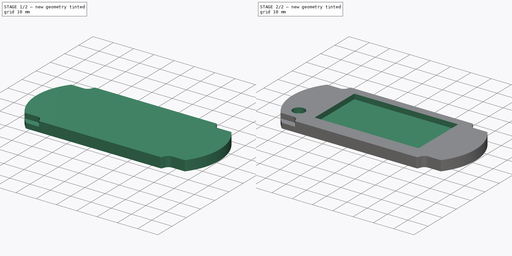
[diagram: build sequence overview — one tinted view per stage of 2, left to right]
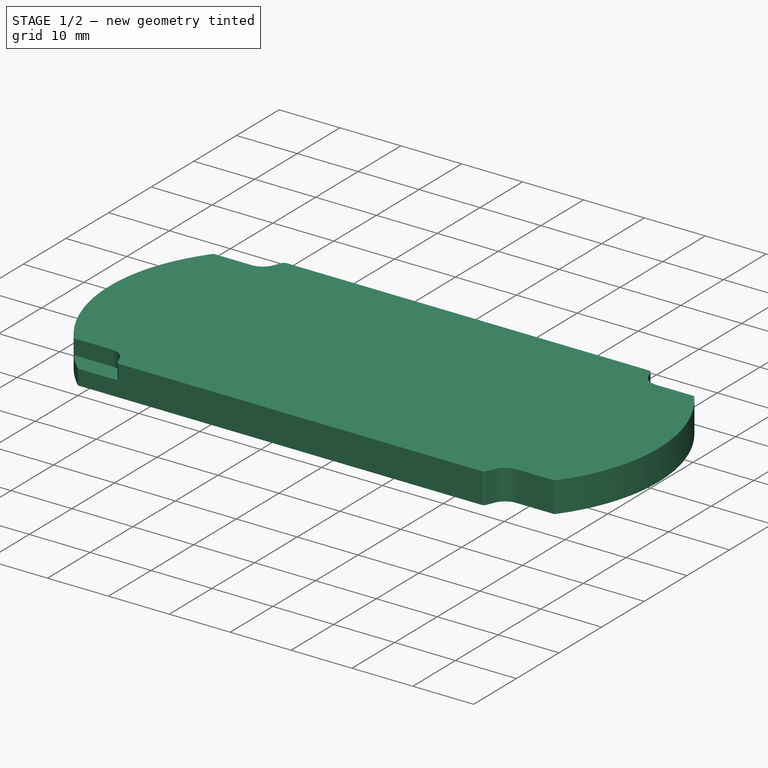
[diagram: stage 1 of 2 — iso view after this stage's code; geometry added in this stage tinted green]
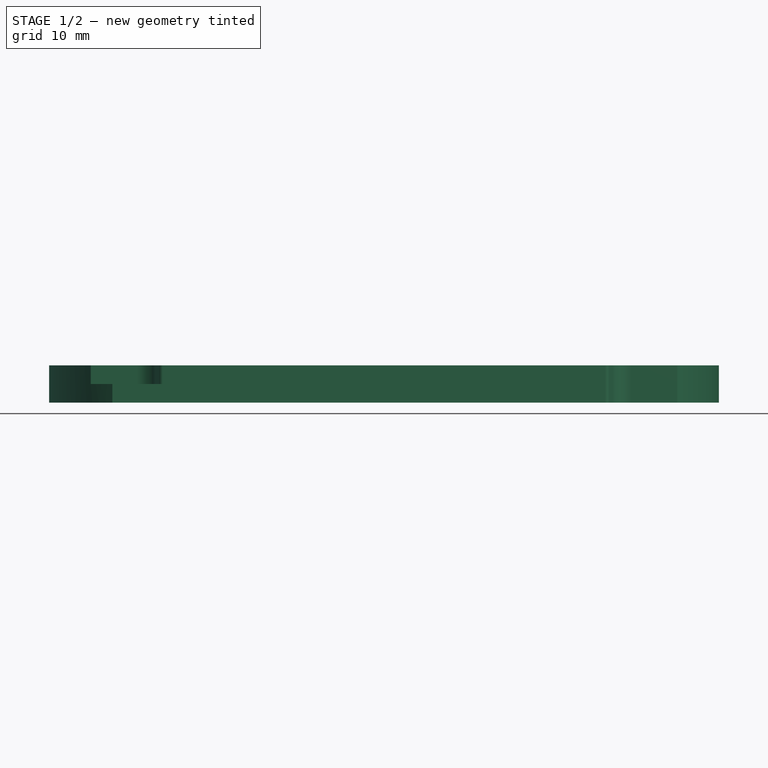
[diagram: stage 1 of 2 — front view after this stage's code; geometry added in this stage tinted green]
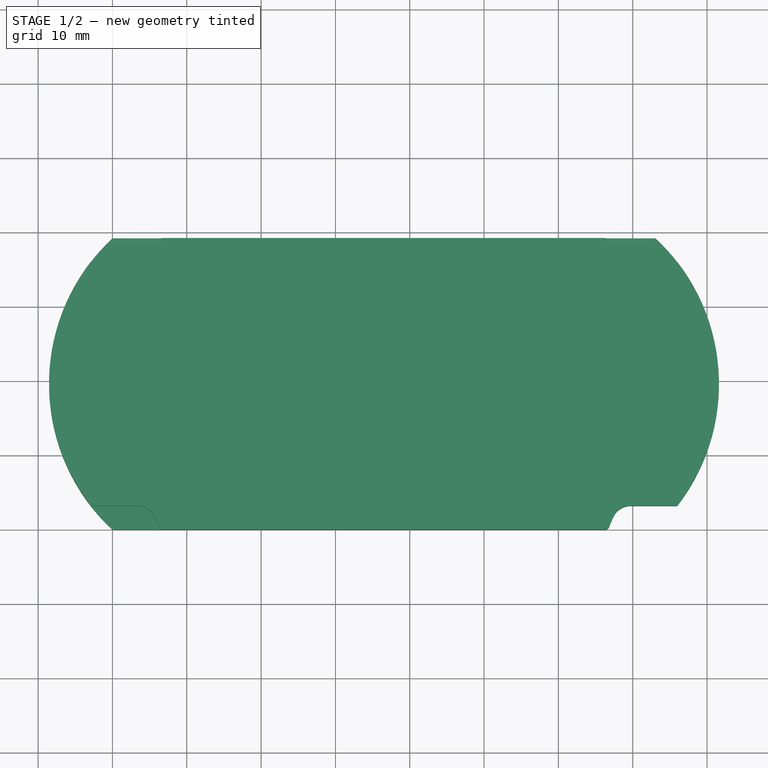
[diagram: stage 1 of 2 — top view after this stage's code; geometry added in this stage tinted green]
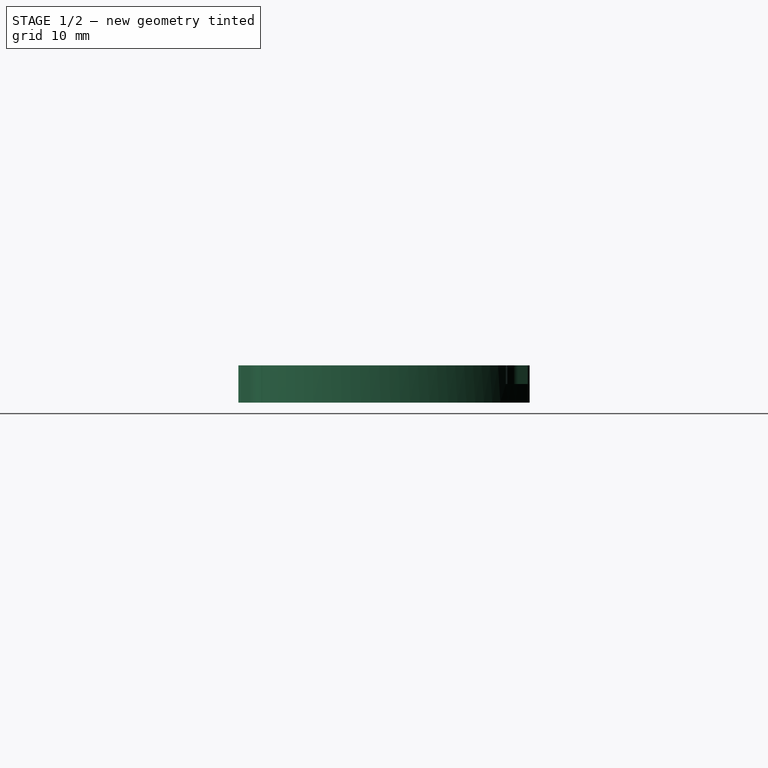
[diagram: stage 1 of 2 — right view after this stage's code; geometry added in this stage tinted green]
FCSTD DOCUMENT  (FreeCAD 0.21R33771 (Git))
Label: PSP Icon
License: All rights reserved
LicenseURL: http://en.wikipedia.org/wiki/All_rights_reserved
objects: Sketcher::SketchObject×3, PartDesign::Pocket×2, PartDesign::Pad×1, PartDesign::Body×1
note: 10 computed .brp shape members not serialized (recipe doc carries the construction recipe); baked Part::Feature solids carry a one-line shape summary decoded from their .brp

FEATURE [Sketcher::SketchObject] Sketch
  FullyConstrained = true
  MapMode = 5
  Support = -> [XY_Plane]
  sketch-geometry (15):
    g0: ArcOfCircle CenterX=18.2438 CenterY=19.6 CenterZ=0 NormalX=0 NormalY=0 NormalZ=1 AngleXU=0 Radius=26.7768 StartAngle=2.32037 EndAngle=3.96281
    g1: LineSegment StartX=0 StartY=39.2 StartZ=0 EndX=0 EndY=0 EndZ=0
    g2: LineSegment StartX=-8.533 StartY=19.6 StartZ=0 EndX=0 EndY=19.6 EndZ=0
    g3: LineSegment StartX=0 StartY=39.2 StartZ=0 EndX=73.067 EndY=39.2 EndZ=0
    g4: LineSegment StartX=73.067 StartY=39.2 StartZ=0 EndX=73.067 EndY=0 EndZ=0
    g5: LineSegment StartX=73.067 StartY=19.6 StartZ=0 EndX=81.6 EndY=19.6 EndZ=0
    g6: ArcOfCircle CenterX=54.8232 CenterY=19.6 CenterZ=0 NormalX=0 NormalY=0 NormalZ=1 AngleXU=0 Radius=26.7768 StartAngle=5.46196 EndAngle=7.10441
    g7: LineSegment StartX=75.9901 StartY=3.2 StartZ=0 EndX=75.9901 EndY=0 EndZ=0
    g8: LineSegment StartX=0 StartY=0 StartZ=0 EndX=73.067 EndY=0 EndZ=0
    g9: LineSegment StartX=75.9901 StartY=3.2 StartZ=0 EndX=69.7731 EndY=3.2 EndZ=0
    g10: LineSegment StartX=67.312 StartY=1.56073 StartZ=0 EndX=66.8022 EndY=0.339902 EndZ=0
    g11: LineSegment StartX=66.2919 StartY=0 StartZ=0 EndX=0 EndY=0 EndZ=0
    g12: ArcOfCircle CenterX=66.2919 CenterY=0.553 CenterZ=0 NormalX=0 NormalY=0 NormalZ=1 AngleXU=0 Radius=0.553 StartAngle=4.71239 EndAngle=5.8876
    g13: ArcOfCircle CenterX=69.7731 CenterY=0.533 CenterZ=0 NormalX=0 NormalY=0 NormalZ=1 AngleXU=0 Radius=2.667 StartAngle=1.5708 EndAngle=2.74601
    g14: ArcOfCircle CenterX=54.8232 CenterY=19.6 CenterZ=0 NormalX=0 NormalY=0 NormalZ=1 AngleXU=0 Radius=26.7768 StartAngle=5.624 EndAngle=7.10441
  constraints (44):
    c: Coincident(g0,g-1)
    c: PointOnObject(g0,g-2)
    c: Coincident(g1,g0)
    c: Coincident(g1,g0)
    c: Distance(g1) = 39.2
    c: PointOnObject(g2,g0)
    c: PointOnObject(g2,g1)
    c: Horizontal(g2)
    c: Perpendicular(g0,g2)
    c: Distance(g2) = 8.533
    c: PointOnObject(g4,g-1)
    c: Coincident(g3,g0)
    c: Horizontal(g3)
    c: Coincident(g4,g3)
    c: Vertical(g4)
    c: PointOnObject(g5,g4)
    c: Horizontal(g5)
    c: Equal(g5,g2)
    c: Coincident(g6,g3)
    c: PointOnObject(g5,g6)
    c: Perpendicular(g6,g5)
    c: PointOnObject(g7,g6)
    c: PointOnObject(g7,g-1)
    c: Vertical(g7)
    c: Coincident(g8,g0)
    c: Coincident(g8,g4)
    c: Coincident(g6,g4)
    c: Distance(g7) = 3.2
    c: Coincident(g9,g7)
    c: Horizontal(g9)
    c: Coincident(g11,g0)
    c: Tangent(g11,g12) = 1.5708
    c: Tangent(g10,g12) = 1.5708
    c: Tangent(g10,g13) = -1.5708
    c: Tangent(g9,g13) = -1.5708
    c: Distance(g9) = 6.217
    c: Radius(g13) = 2.667
    c: Distance(g10) = 1.323
    c: PointOnObject(g11,g8)
    c: Radius(g12) = 0.553
    c: Distance(g3) = 73.067
    c: Coincident(g14,g3)
    c: Coincident(g14,g9)
    c: Equal(g6,g14)
FEATURE [PartDesign::Pad] Pad
  Direction = (0,0,1)
  Length = 5
  Length2 = 10
  Profile = -> Sketch
  ReferenceAxis = -> Sketch [N_Axis]
  Type = 0
FEATURE [Sketcher::SketchObject] Sketch001
  ExternalGeometry = -> [Pad]
  FullyConstrained = true
  MapMode = 5
  Placement = pos=(0,0,5) rot=(0,0,1;0rad)
  Support = -> [Pad]
  sketch-geometry (24):
    g0: LineSegment StartX=-3.6e-15 StartY=39.2 StartZ=0 EndX=73.067 EndY=39.2 EndZ=0
    g1: LineSegment StartX=73.067 StartY=39.2 StartZ=0 EndX=75.9901 EndY=39.2 EndZ=0
    g2: LineSegment StartX=-3.6e-15 StartY=39.2 StartZ=0 EndX=-2.92307 EndY=39.2 EndZ=0
    g3: LineSegment StartX=-2.92307 StartY=39.2 StartZ=0 EndX=-2.92307 EndY=36 EndZ=0
    g4: LineSegment StartX=75.9901 StartY=39.2 StartZ=0 EndX=75.9901 EndY=36 EndZ=0
    g5: LineSegment StartX=-2.92307 StartY=36 StartZ=0 EndX=3.29393 EndY=36 EndZ=0
    g6: LineSegment StartX=5.75496 StartY=37.6393 StartZ=0 EndX=6.26477 EndY=38.8601 EndZ=0
    g7: LineSegment StartX=-2.92307 StartY=39.2 StartZ=0 EndX=-2.92307 EndY=36 EndZ=0
    g8: LineSegment StartX=75.9901 StartY=36 StartZ=0 EndX=69.7731 EndY=36 EndZ=0
    g9: LineSegment StartX=67.312 StartY=37.6393 StartZ=0 EndX=66.8022 EndY=38.8601 EndZ=0
    g10: LineSegment StartX=75.9901 StartY=39.2 StartZ=0 EndX=75.9901 EndY=36 EndZ=0
    g11: ArcOfCircle CenterX=3.29393 CenterY=38.667 CenterZ=0 NormalX=0 NormalY=0 NormalZ=1 AngleXU=0 Radius=2.667 StartAngle=4.71239 EndAngle=5.8876
    g12: ArcOfCircle CenterX=6.77507 CenterY=38.647 CenterZ=0 NormalX=0 NormalY=0 NormalZ=1 AngleXU=0 Radius=0.553 StartAngle=1.5708 EndAngle=2.74601
    g13: LineSegment StartX=-2.92307 StartY=39.2 StartZ=0 EndX=6.77507 EndY=39.2 EndZ=0
    g14: ArcOfCircle CenterX=66.2919 CenterY=38.647 CenterZ=0 NormalX=0 NormalY=0 NormalZ=1 AngleXU=0 Radius=0.553 StartAngle=0.395587 EndAngle=1.5708
    g15: LineSegment StartX=66.2919 StartY=39.2 StartZ=0 EndX=75.9901 EndY=39.2 EndZ=0
    g16: ArcOfCircle CenterX=69.7731 CenterY=38.667 CenterZ=0 NormalX=0 NormalY=0 NormalZ=1 AngleXU=0 Radius=2.667 StartAngle=3.53718 EndAngle=4.71239
    g17: LineSegment StartX=-2.92307 StartY=3.2 StartZ=0 EndX=-2.92307 EndY=0 EndZ=0
    g18: LineSegment StartX=-2.92307 StartY=0 StartZ=0 EndX=6.77507 EndY=0 EndZ=0
    g19: LineSegment StartX=-2.92307 StartY=3.2 StartZ=0 EndX=3.29393 EndY=3.2 EndZ=0
    g20: LineSegment StartX=5.75496 StartY=1.56073 StartZ=0 EndX=6.26477 EndY=0.339902 EndZ=0
    g21: LineSegment StartX=-2.92307 StartY=0 StartZ=0 EndX=6.77507 EndY=0 EndZ=0
    g22: ArcOfCircle CenterX=3.29393 CenterY=0.533 CenterZ=0 NormalX=0 NormalY=0 NormalZ=1 AngleXU=0 Radius=2.667 StartAngle=0.395587 EndAngle=1.5708
    g23: ArcOfCircle CenterX=6.77507 CenterY=0.553 CenterZ=0 NormalX=0 NormalY=0 NormalZ=1 AngleXU=0 Radius=0.553 StartAngle=3.53718 EndAngle=4.71239
  constraints (62):
    c: Coincident(g0,g-3)
    c: Coincident(g0,g-4)
    c: Coincident(g1,g0)
    c: Horizontal(g1)
    c: Coincident(g2,g0)
    c: Horizontal(g2)
    c: Coincident(g3,g2)
    c: PointOnObject(g3,g-3)
    c: Vertical(g3)
    c: Coincident(g4,g1)
    c: PointOnObject(g4,g-4)
    c: Vertical(g4)
    c: Equal(g3,g4)
    c: Distance(g4) = 3.2
    c: Coincident(g5,g3)
    c: Horizontal(g5)
    c: Coincident(g7,g5)
    c: Coincident(g8,g4)
    c: Horizontal(g8)
    c: Coincident(g10,g8)
    c: Tangent(g5,g11) = -1.5708
    c: Tangent(g6,g11) = -1.5708
    c: PointOnObject(g12,g0)
    c: Tangent(g12,g0)
    c: Coincident(g13,g7)
    c: Coincident(g13,g12)
    c: Tangent(g12,g6) = 1.5708
    c: PointOnObject(g14,g0)
    c: Coincident(g15,g14)
    c: Coincident(g15,g10)
    c: Tangent(g15,g14)
    c: Tangent(g14,g9) = -1.5708
    c: Tangent(g9,g16) = 1.5708
    c: Tangent(g8,g16) = 1.5708
    c: Coincident(g10,g1)
    c: Radius(g16) = 2.667
    c: Distance(g9) = 1.323
    c: Radius(g14) = 0.553
    c: Distance(g8) = 6.217
    c: Equal(g8,g5)
    c: Equal(g11,g16)
    c: Equal(g9,g6)
    c: Equal(g12,g14)
    c: Coincident(g2,g7)
    c: PointOnObject(g17,g-3)
    c: PointOnObject(g17,g-1)
    c: Vertical(g17)
    c: Coincident(g18,g17)
    c: Coincident(g17,g19)
    c: Horizontal(g19)
    c: Coincident(g21,g17)
    c: Tangent(g23,g21) = -1.5708
    c: Tangent(g23,g20) = -1.5708
    c: Tangent(g22,g20) = 1.5708
    c: Tangent(g22,g19) = 1.5708
    c: Equal(g17,g7)
    c: Equal(g5,g19)
    c: Equal(g22,g11)
    c: Equal(g6,g20)
    c: Equal(g23,g12)
    c: Coincident(g21,g18)
    c: Horizontal(g21)
FEATURE [PartDesign::Pocket] Pocket
  BaseFeature = -> Pad
  Direction = (0,0,-1)
  Length = 2.5
  Length2 = 5
  Profile = -> Sketch001
  ReferenceAxis = -> Sketch001 [N_Axis]
  Type = 0
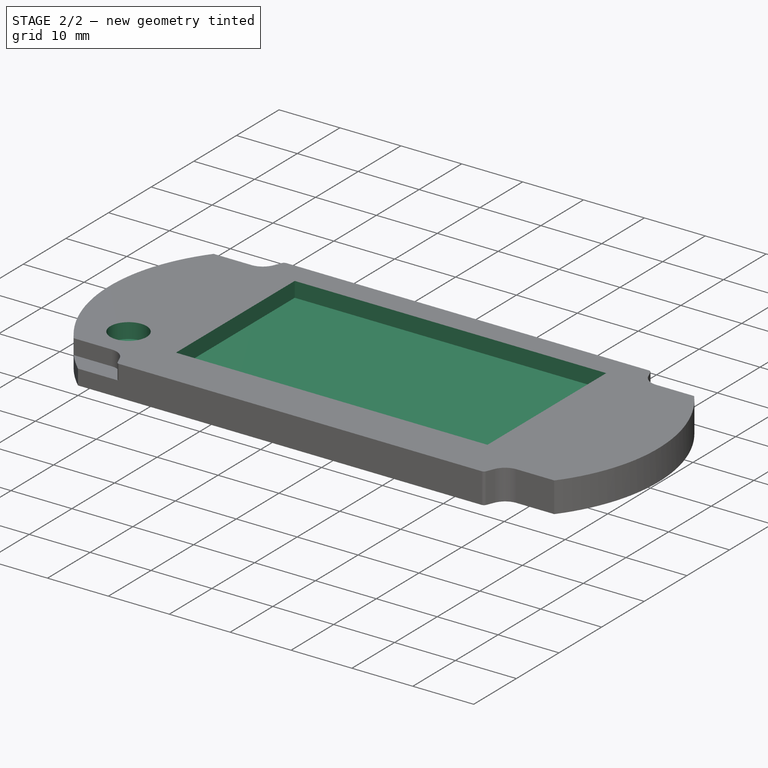
[diagram: stage 2 of 2 — iso view after this stage's code; geometry added in this stage tinted green]
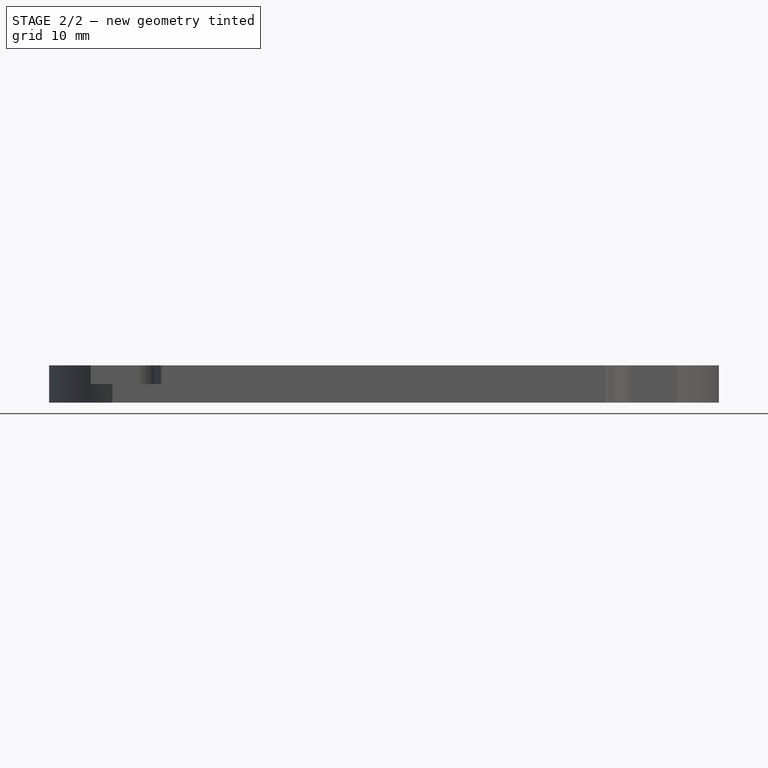
[diagram: stage 2 of 2 — front view after this stage's code; geometry added in this stage tinted green]
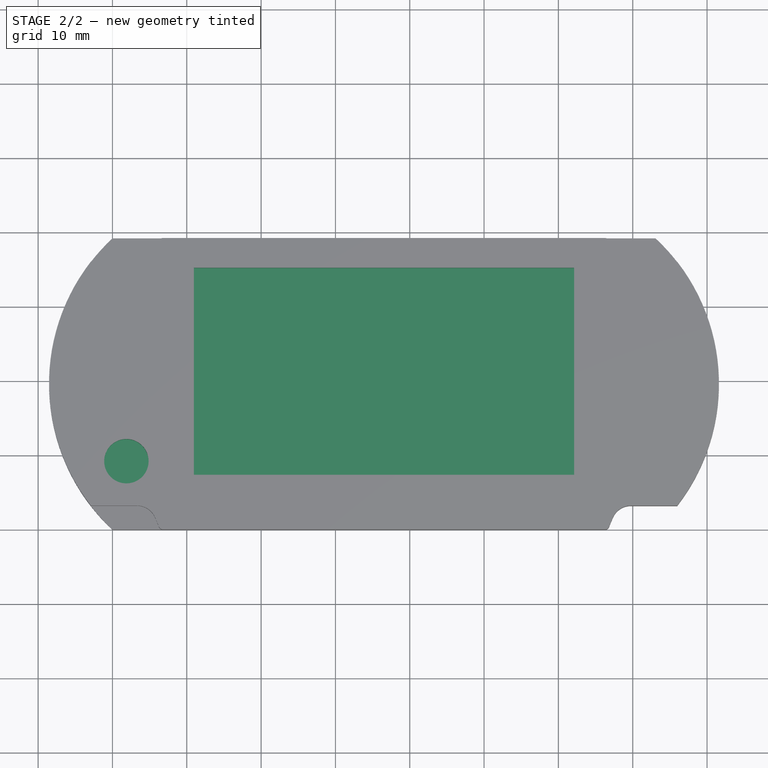
[diagram: stage 2 of 2 — top view after this stage's code; geometry added in this stage tinted green]
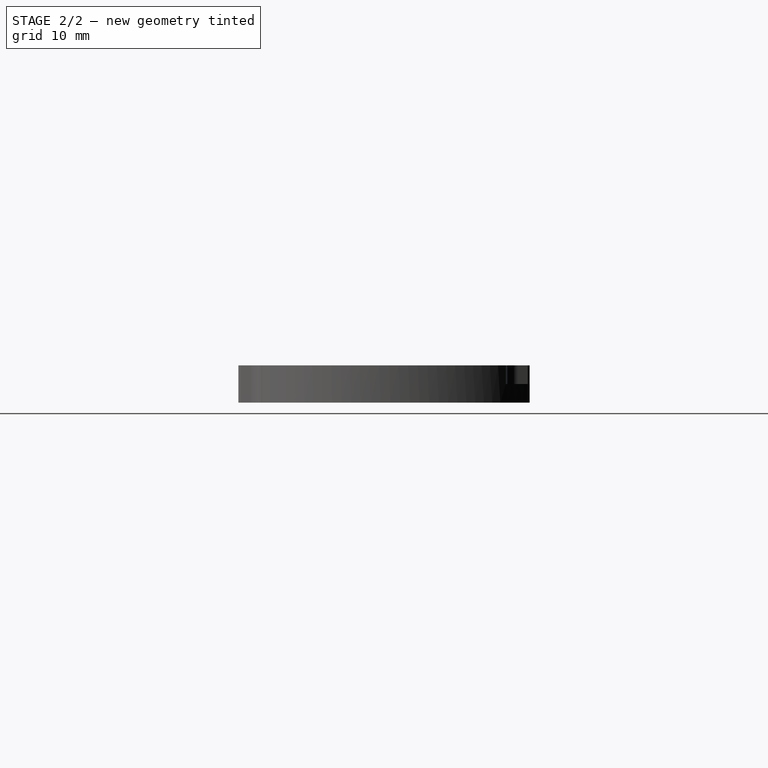
[diagram: stage 2 of 2 — right view after this stage's code; geometry added in this stage tinted green]
FEATURE [Sketcher::SketchObject] Sketch002
  ExternalGeometry = -> [Pocket]
  FullyConstrained = true
  MapMode = 5
  Placement = pos=(0,0,5) rot=(0,0,1;0rad)
  Support = -> [Pocket]
  sketch-geometry (17):
    g0: LineSegment StartX=10.9519 StartY=35.2 StartZ=0 EndX=62.1151 EndY=35.2 EndZ=0
    g1: LineSegment StartX=62.1151 StartY=35.2 StartZ=0 EndX=62.1151 EndY=7.34 EndZ=0
    g2: LineSegment StartX=62.1151 StartY=7.34 StartZ=0 EndX=10.9519 EndY=7.34 EndZ=0
    g3: LineSegment StartX=10.9519 StartY=7.34 StartZ=0 EndX=10.9519 EndY=35.2 EndZ=0
    g4: Circle CenterX=1.87693 CenterY=9.173 CenterZ=0 NormalX=0 NormalY=0 NormalZ=1 AngleXU=0 Radius=2.9865
    g5: LineSegment StartX=-2.92307 StartY=36 StartZ=0 EndX=10.9519 EndY=36 EndZ=0
    g6: LineSegment StartX=10.9519 StartY=36 StartZ=0 EndX=10.9519 EndY=35.2 EndZ=0
    g7: LineSegment StartX=10.9519 StartY=35.2 StartZ=0 EndX=-2.92307 EndY=35.2 EndZ=0
    g8: LineSegment StartX=-2.92307 StartY=35.2 StartZ=0 EndX=-2.92307 EndY=36 EndZ=0
    g9: LineSegment StartX=75.9901 StartY=3.2 StartZ=0 EndX=62.1151 EndY=3.2 EndZ=0
    g10: LineSegment StartX=62.1151 StartY=3.2 StartZ=0 EndX=62.1151 EndY=7.34 EndZ=0
    g11: LineSegment StartX=62.1151 StartY=7.34 StartZ=0 EndX=75.9901 EndY=7.34 EndZ=0
    g12: LineSegment StartX=75.9901 StartY=7.34 StartZ=0 EndX=75.9901 EndY=3.2 EndZ=0
    g13: LineSegment StartX=-2.92307 StartY=3.2 StartZ=0 EndX=1.87693 EndY=3.2 EndZ=0
    g14: LineSegment StartX=1.87693 StartY=3.2 StartZ=0 EndX=1.87693 EndY=9.173 EndZ=0
    g15: LineSegment StartX=1.87693 StartY=9.173 StartZ=0 EndX=-2.92307 EndY=9.173 EndZ=0
    g16: LineSegment StartX=-2.92307 StartY=9.173 StartZ=0 EndX=-2.92307 EndY=3.2 EndZ=0
  constraints (45):
    c: Coincident(g0,g1)
    c: Coincident(g1,g2)
    c: Coincident(g2,g3)
    c: Coincident(g3,g0)
    c: Horizontal(g0)
    c: Horizontal(g2)
    c: Vertical(g1)
    c: Vertical(g3)
    c: Coincident(g5,g6)
    c: Coincident(g6,g7)
    c: Coincident(g7,g8)
    c: Coincident(g8,g5)
    c: Horizontal(g5)
    c: Horizontal(g7)
    c: Vertical(g6)
    c: Vertical(g8)
    c: Coincident(g5,g-3)
    c: Coincident(g6,g0)
    c: Coincident(g9,g10)
    c: Coincident(g10,g11)
    c: Coincident(g11,g12)
    c: Coincident(g12,g9)
    c: Horizontal(g9)
    c: Horizontal(g11)
    c: Vertical(g10)
    c: Vertical(g12)
    c: Coincident(g9,g-4)
    c: Coincident(g10,g1)
    c: Coincident(g13,g14)
    c: Coincident(g14,g15)
    c: Coincident(g15,g16)
    c: Coincident(g16,g13)
    c: Horizontal(g13)
    c: Horizontal(g15)
    c: Vertical(g14)
    c: Vertical(g16)
    c: Coincident(g13,g-3)
    c: Coincident(g14,g4)
    c: Distance(g15) = 4.8
    c: Distance(g16) = 5.973
    c: Diameter(g4) = 5.973
    c: Distance(g8) = 0.8
    c: Distance(g5) = 13.875
    c: Distance(g12) = 4.14
    c: Equal(g5,g11)
FEATURE [PartDesign::Pocket] Pocket001
  BaseFeature = -> Pocket
  Direction = (0,0,-1)
  Length = 2.5
  Length2 = 5
  Profile = -> Sketch002
  ReferenceAxis = -> Sketch002 [N_Axis]
  Type = 0
FEATURE [PartDesign::Body] Body
  Group = -> [Sketch,Pad,Sketch001,Pocket,Sketch002,Pocket001]
  Origin = -> Origin
  Tip = -> Pocket001
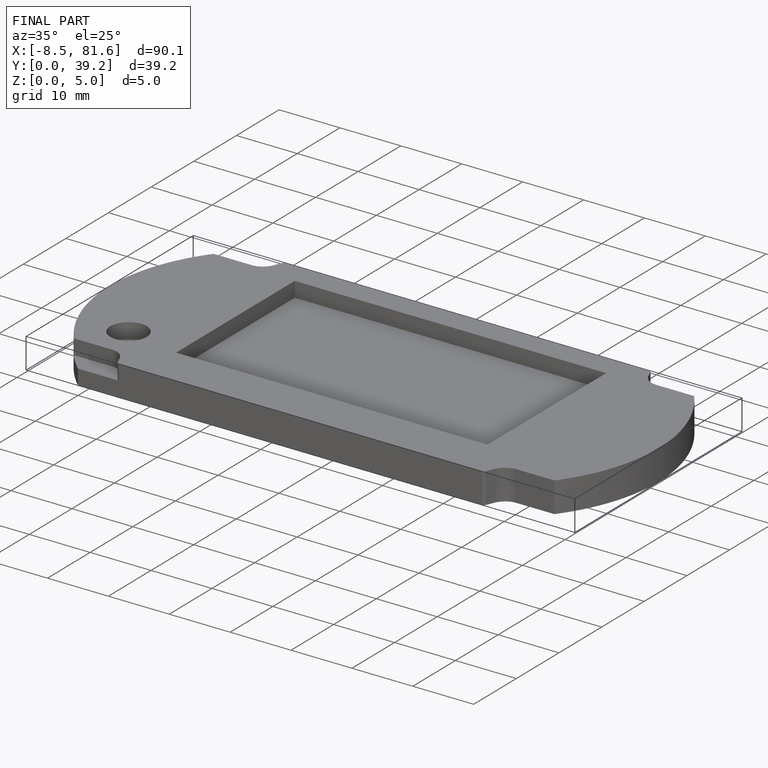
[diagram: finished part — iso view with bounding-box wireframe]
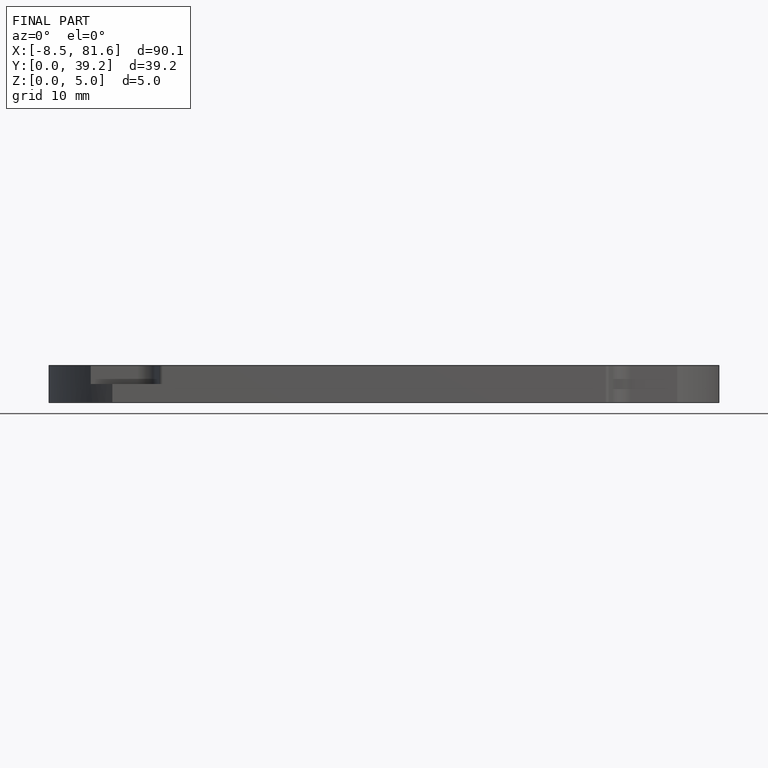
[diagram: finished part — front view with bounding-box wireframe]
